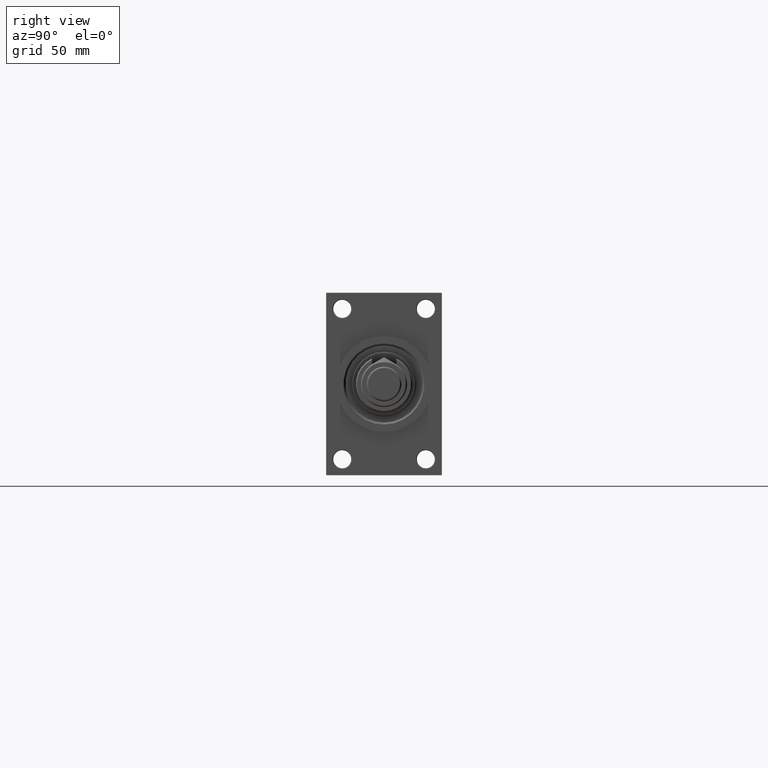
[diagram: clean part render]
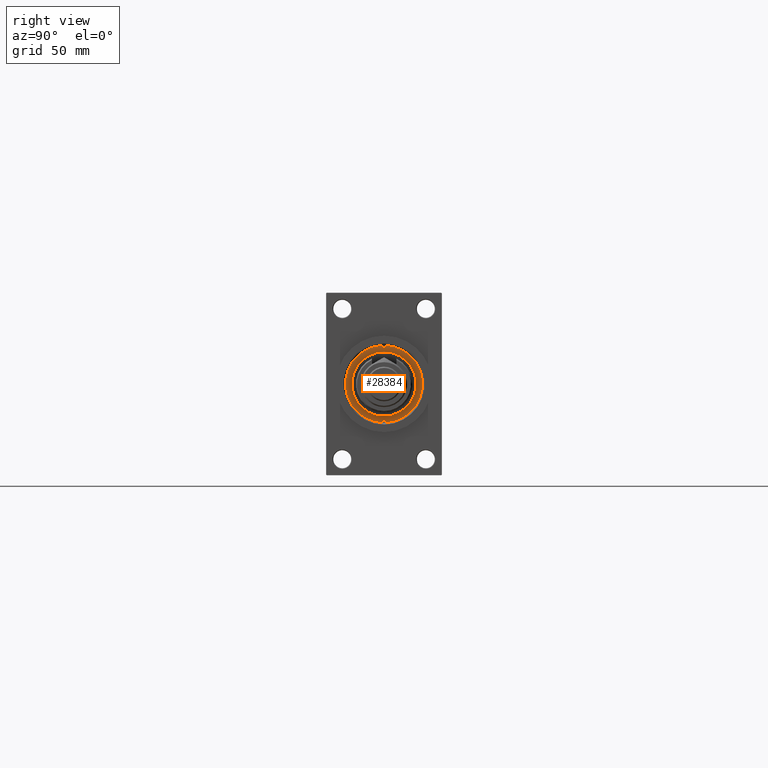
[diagram: same view with one face highlighted and labeled with its STEP entity id]
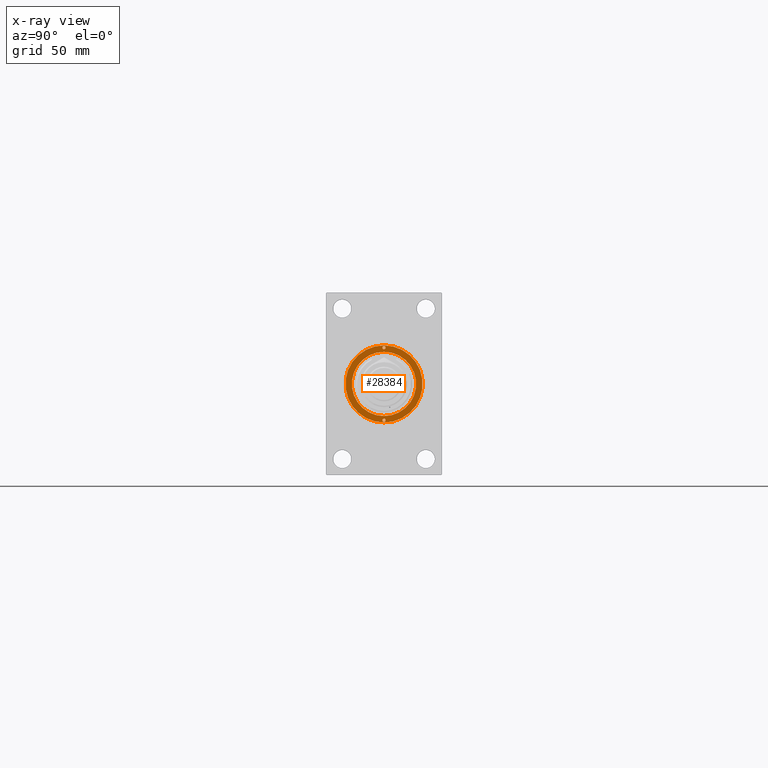
[diagram: x-ray of the same camera — body ghosted, the highlighted face saturated]
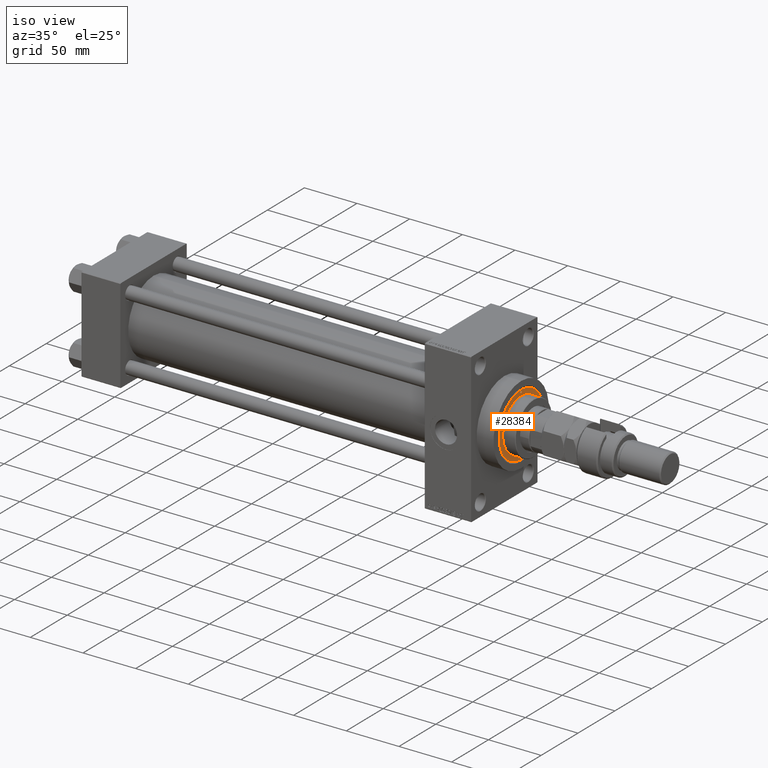
[diagram: same view with one face highlighted and labeled with its STEP entity id]
A machine part, right view. The second image highlights one B-rep face of the part: STEP entity #28384.
The next image is the same camera in x-ray: the body ghosted, the highlighted face saturated — about 0% of this face is hidden behind the body in this view.
A second angle (iso view) of the same face is appended — the face is thin or edge-on in the first view.
In plain terms, the highlighted planar face has unit normal (1, -0, -0).
Its self-contained STEP definition (entity closure, byte-faithful):
#598 = AXIS2_PLACEMENT_3D ( 'NONE', #18327, #44515, #5603 ) ;
#1105 = CARTESIAN_POINT ( 'NONE',  ( 0.000000000000000000, 0.000000000000000000, 43.25999999999999801 ) ) ;
#1192 = DIRECTION ( 'NONE',  ( 0.000000000000000000, 0.000000000000000000, 1.000000000000000000 ) ) ;
#1467 = AXIS2_PLACEMENT_3D ( 'NONE', #31137, #16132, #46661 ) ;
#2308 = AXIS2_PLACEMENT_3D ( 'NONE', #9631, #39674, #43495 ) ;
#3020 = VERTEX_POINT ( 'NONE', #39041 ) ;
#3765 = VERTEX_POINT ( 'NONE', #44650 ) ;
#4138 = DIRECTION ( 'NONE',  ( 1.000000000000000000, 0.000000000000000000, 0.000000000000000000 ) ) ;
#5413 = DIRECTION ( 'NONE',  ( 1.000000000000000000, 0.000000000000000000, 0.000000000000000000 ) ) ;
#5603 = DIRECTION ( 'NONE',  ( 1.000000000000000000, 0.000000000000000000, 0.000000000000000000 ) ) ;
#7097 = EDGE_CURVE ( 'NONE', #47188, #33694, #33110, .T. ) ;
#7930 = AXIS2_PLACEMENT_3D ( 'NONE', #32235, #40365, #24873 ) ;
#7957 = CARTESIAN_POINT ( 'NONE',  ( -28.25000000000000000, 0.000000000000000000, 43.25999999999999801 ) ) ;
#9226 = CARTESIAN_POINT ( 'NONE',  ( -29.50000000000000000, 1.530808498934188612E-16, 43.25999999999999801 ) ) ;
#9296 = EDGE_CURVE ( 'NONE', #47580, #29210, #23499, .T. ) ;
#9631 = CARTESIAN_POINT ( 'NONE',  ( 0.000000000000000000, 0.000000000000000000, 43.25999999999999801 ) ) ;
#10575 = CARTESIAN_POINT ( 'NONE',  ( 0.000000000000000000, 0.000000000000000000, 43.25999999999999801 ) ) ;
#11204 = ORIENTED_EDGE ( 'NONE', *, *, #19808, .F. ) ;
#11250 = CIRCLE ( 'NONE', #41267, 30.00000000000000000 ) ;
#13572 = CIRCLE ( 'NONE', #42014, 1.249999999999997558 ) ;
#14032 = EDGE_LOOP ( 'NONE', ( #11204, #19266 ) ) ;
#14392 = PLANE ( 'NONE',  #22579 ) ;
#14649 = FACE_BOUND ( 'NONE', #14032, .T. ) ;
#16132 = DIRECTION ( 'NONE',  ( -0.000000000000000000, -0.000000000000000000, 1.000000000000000000 ) ) ;
#18327 = CARTESIAN_POINT ( 'NONE',  ( 0.000000000000000000, 0.000000000000000000, 43.25999999999999801 ) ) ;
#18701 = CARTESIAN_POINT ( 'NONE',  ( 27.00000000000000355, 1.530808498934188612E-16, 43.25999999999999801 ) ) ;
#19163 = ORIENTED_EDGE ( 'NONE', *, *, #33801, .T. ) ;
#19266 = ORIENTED_EDGE ( 'NONE', *, *, #30404, .F. ) ;
#19808 = EDGE_CURVE ( 'NONE', #46910, #3765, #46093, .T. ) ;
#22579 = AXIS2_PLACEMENT_3D ( 'NONE', #10575, #33721, #22806 ) ;
#22806 = DIRECTION ( 'NONE',  ( 1.000000000000000000, 0.000000000000000000, -0.000000000000000000 ) ) ;
#23499 = CIRCLE ( 'NONE', #47835, 1.249999999999997558 ) ;
#23504 = DIRECTION ( 'NONE',  ( -0.000000000000000000, -0.000000000000000000, 1.000000000000000000 ) ) ;
#24873 = DIRECTION ( 'NONE',  ( 1.000000000000000000, 0.000000000000000000, 0.000000000000000000 ) ) ;
#25432 = CARTESIAN_POINT ( 'NONE',  ( -27.00000000000000355, 0.000000000000000000, 43.25999999999999801 ) ) ;
#25948 = CARTESIAN_POINT ( 'NONE',  ( -25.00000000000000000, 0.000000000000000000, 43.25999999999999801 ) ) ;
#26239 = ORIENTED_EDGE ( 'NONE', *, *, #41799, .T. ) ;
#27813 = EDGE_CURVE ( 'NONE', #29210, #47580, #13572, .T. ) ;
#28168 = DIRECTION ( 'NONE',  ( 1.000000000000000000, 0.000000000000000000, 0.000000000000000000 ) ) ;
#28209 = EDGE_CURVE ( 'NONE', #33694, #47188, #43695, .T. ) ;
#28384 = ADVANCED_FACE ( 'NONE', ( #33465, #49232, #14649, #45167 ), #14392, .T. ) ;
#29035 = EDGE_LOOP ( 'NONE', ( #49144, #37224 ) ) ;
#29210 = VERTEX_POINT ( 'NONE', #25432 ) ;
#29716 = VERTEX_POINT ( 'NONE', #30315 ) ;
#30315 = CARTESIAN_POINT ( 'NONE',  ( 30.00000000000000000, 3.673940397442059178E-15, 43.25999999999999801 ) ) ;
#30404 = EDGE_CURVE ( 'NONE', #3765, #46910, #35633, .T. ) ;
#30826 = EDGE_LOOP ( 'NONE', ( #19163, #26239 ) ) ;
#31137 = CARTESIAN_POINT ( 'NONE',  ( 28.25000000000000000, 0.000000000000000000, 43.25999999999999801 ) ) ;
#32235 = CARTESIAN_POINT ( 'NONE',  ( 28.25000000000000000, 0.000000000000000000, 43.25999999999999801 ) ) ;
#32637 = DIRECTION ( 'NONE',  ( 0.000000000000000000, 0.000000000000000000, 1.000000000000000000 ) ) ;
#33110 = CIRCLE ( 'NONE', #1467, 1.249999999999997558 ) ;
#33465 = FACE_BOUND ( 'NONE', #40480, .T. ) ;
#33694 = VERTEX_POINT ( 'NONE', #18701 ) ;
#33721 = DIRECTION ( 'NONE',  ( 0.000000000000000000, 0.000000000000000000, 1.000000000000000000 ) ) ;
#33801 = EDGE_CURVE ( 'NONE', #3020, #29716, #11250, .T. ) ;
#35633 = CIRCLE ( 'NONE', #2308, 25.00000000000000000 ) ;
#36693 = CIRCLE ( 'NONE', #39156, 30.00000000000000000 ) ;
#37224 = ORIENTED_EDGE ( 'NONE', *, *, #28209, .F. ) ;
#39041 = CARTESIAN_POINT ( 'NONE',  ( -30.00000000000000000, 0.000000000000000000, 43.25999999999999801 ) ) ;
#39156 = AXIS2_PLACEMENT_3D ( 'NONE', #40354, #1192, #28168 ) ;
#39674 = DIRECTION ( 'NONE',  ( 0.000000000000000000, 0.000000000000000000, 1.000000000000000000 ) ) ;
#40354 = CARTESIAN_POINT ( 'NONE',  ( 0.000000000000000000, 0.000000000000000000, 43.25999999999999801 ) ) ;
#40365 = DIRECTION ( 'NONE',  ( -0.000000000000000000, -0.000000000000000000, 1.000000000000000000 ) ) ;
#40373 = DIRECTION ( 'NONE',  ( -0.000000000000000000, -0.000000000000000000, 1.000000000000000000 ) ) ;
#40480 = EDGE_LOOP ( 'NONE', ( #46894, #49181 ) ) ;
#41267 = AXIS2_PLACEMENT_3D ( 'NONE', #1105, #32637, #5413 ) ;
#41799 = EDGE_CURVE ( 'NONE', #29716, #3020, #36693, .T. ) ;
#42014 = AXIS2_PLACEMENT_3D ( 'NONE', #7957, #23504, #4138 ) ;
#43495 = DIRECTION ( 'NONE',  ( 1.000000000000000000, 0.000000000000000000, 0.000000000000000000 ) ) ;
#43695 = CIRCLE ( 'NONE', #7930, 1.249999999999997558 ) ;
#44192 = DIRECTION ( 'NONE',  ( 1.000000000000000000, 0.000000000000000000, 0.000000000000000000 ) ) ;
#44515 = DIRECTION ( 'NONE',  ( 0.000000000000000000, 0.000000000000000000, 1.000000000000000000 ) ) ;
#44650 = CARTESIAN_POINT ( 'NONE',  ( 25.00000000000000000, 3.061616997868383043E-15, 43.25999999999999801 ) ) ;
#44680 = CARTESIAN_POINT ( 'NONE',  ( -28.25000000000000000, 0.000000000000000000, 43.25999999999999801 ) ) ;
#45167 = FACE_OUTER_BOUND ( 'NONE', #30826, .T. ) ;
#45720 = CARTESIAN_POINT ( 'NONE',  ( 29.50000000000000000, 0.000000000000000000, 43.25999999999999801 ) ) ;
#46093 = CIRCLE ( 'NONE', #598, 25.00000000000000000 ) ;
#46661 = DIRECTION ( 'NONE',  ( 1.000000000000000000, 0.000000000000000000, 0.000000000000000000 ) ) ;
#46894 = ORIENTED_EDGE ( 'NONE', *, *, #27813, .F. ) ;
#46910 = VERTEX_POINT ( 'NONE', #25948 ) ;
#47188 = VERTEX_POINT ( 'NONE', #45720 ) ;
#47580 = VERTEX_POINT ( 'NONE', #9226 ) ;
#47835 = AXIS2_PLACEMENT_3D ( 'NONE', #44680, #40373, #44192 ) ;
#49144 = ORIENTED_EDGE ( 'NONE', *, *, #7097, .F. ) ;
#49181 = ORIENTED_EDGE ( 'NONE', *, *, #9296, .F. ) ;
#49232 = FACE_BOUND ( 'NONE', #29035, .T. ) ;